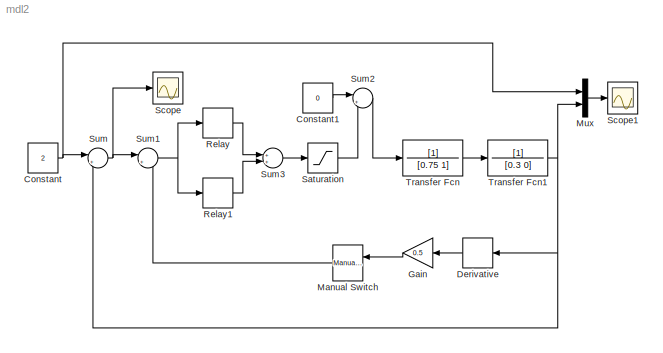
MODEL mdl2
KIND model
CONFIG AbsTol = auto
CONFIG FixedStep = 0.01
CONFIG MaxStep = auto
CONFIG MinStep = auto
CONFIG RelTol = 1e-3
CONFIG Solver = ode1
CONFIG SolverMode = Auto
CONFIG StartTime = 0.0
CONFIG StopTime = 5
BLOCK [Constant] Constant
  Value = 2
BLOCK [Constant] Constant1
  Value = 0
BLOCK [Derivative] Derivative
BLOCK [Gain] Gain
  Gain = 0.5
BLOCK [Reference] Manual Switch  REF=simulink/Signal\nRouting/Manual Switch
  Ports = [2, 1]
  SourceBlock = simulink/Signal\nRouting/Manual Switch
  SourceType = Manual Switch
  action = 0
  sw = 0
BLOCK [Mux] Mux
  DisplayOption = bar
  Inputs = 2
  Ports = [2, 1]
BLOCK [Relay] Relay
  OffSwitchValue = eps2
  OnOutputValue = amp
  OnSwitchValue = eps1
BLOCK [Relay] Relay1
  OffOutputValue = -amp
  OffSwitchValue = -eps1
  OnOutputValue = 0
  OnSwitchValue = -eps2
BLOCK [Saturate] Saturation
  LowerLimit = -5
  UpperLimit = 5
BLOCK [Scope] Scope
  DataFormat = StructureWithTime
  NumInputPorts = 1
  Ports = [1]
BLOCK [Scope] Scope1
  DataFormat = StructureWithTime
  LimitDataPoints = off
  NumInputPorts = 1
  Ports = [1]
  SaveName = ScopeData1
BLOCK [Sum] Sum
  IconShape = round
  InputSameDT = off
  Inputs = |+-
  OutDataTypeMode = Inherit via internal rule
  Ports = [2, 1]
BLOCK [Sum] Sum1
  IconShape = round
  InputSameDT = off
  Inputs = |+-
  OutDataTypeMode = Inherit via internal rule
  Ports = [2, 1]
BLOCK [Sum] Sum2
  IconShape = round
  InputSameDT = off
  Inputs = |++
  OutDataTypeMode = Inherit via internal rule
  Ports = [2, 1]
BLOCK [Sum] Sum3
  InputSameDT = off
  OutDataTypeMode = Inherit via internal rule
  Ports = [2, 1]
BLOCK [TransferFcn] Transfer Fcn
  Denominator = [0.75 1]
BLOCK [TransferFcn] Transfer Fcn1
  Denominator = [0.3 0]
LINE Constant1:1 -> Sum2:1
NET Constant:1 -> Mux:1, Sum:1
LINE Derivative:1 -> Gain:1
LINE Gain:1 -> Manual Switch:1
LINE Manual Switch:1 -> Sum1:2
LINE Mux:1 -> Scope1:1
LINE Relay1:1 -> Sum3:2
LINE Relay:1 -> Sum3:1
LINE Saturation:1 -> Sum2:2
NET Sum1:1 -> Relay1:1, Relay:1
LINE Sum2:1 -> Transfer Fcn:1
LINE Sum3:1 -> Saturation:1
NET Sum:1 -> Scope:1, Sum1:1
NET Transfer Fcn1:1 -> Derivative:1, Mux:2, Sum:2
LINE Transfer Fcn:1 -> Transfer Fcn1:1
note: NET lines group one-source signal fan-out (src -> all destinations, sorted); 1:1 wires keep LINE
